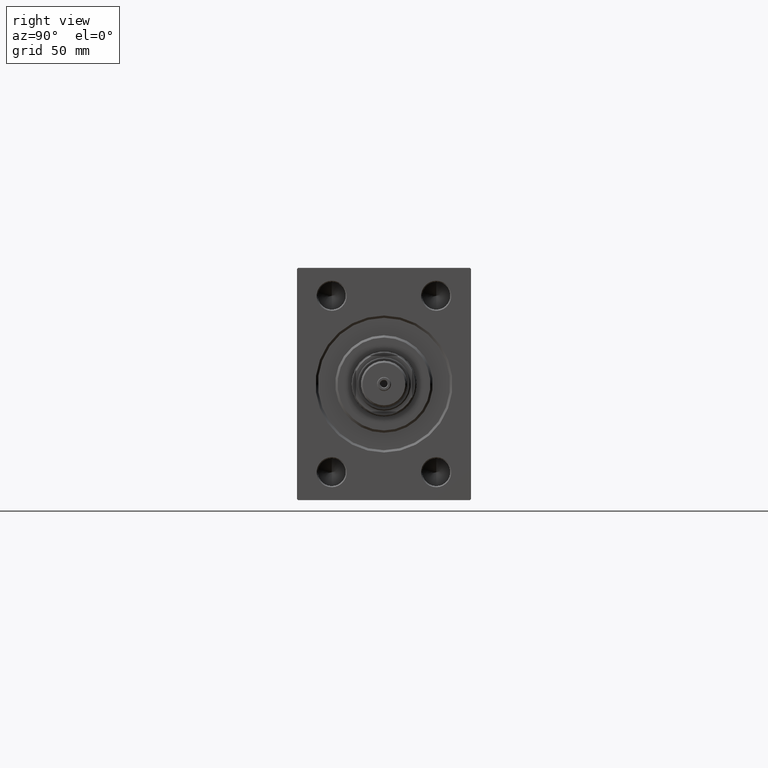
[diagram: clean part render]
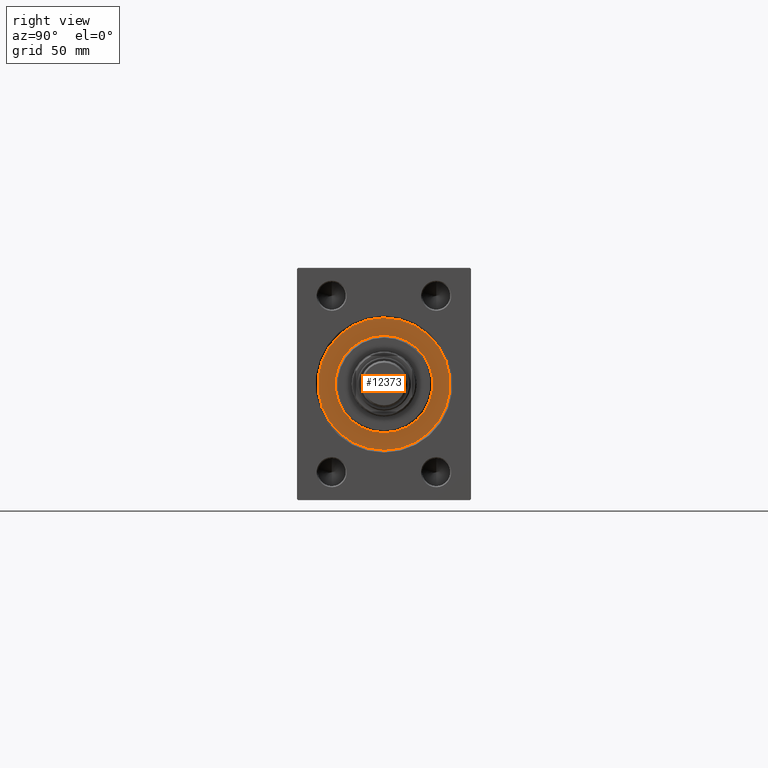
[diagram: same view with one face highlighted and labeled with its STEP entity id]
A machine part, right view. The second image highlights one B-rep face of the part: STEP entity #12373.
In plain terms, the highlighted planar face has unit normal (-1, 0, 0).
Its self-contained STEP definition (entity closure, byte-faithful):
#1691 = CARTESIAN_POINT ( 'NONE',  ( 0.000000000000000000, 0.000000000000000000, -28.50000000000000000 ) ) ;
#1808 = CARTESIAN_POINT ( 'NONE',  ( 0.000000000000000000, 0.000000000000000000, 21.00000000000000000 ) ) ;
#2731 = AXIS2_PLACEMENT_3D ( 'NONE', #39729, #7755, #25288 ) ;
#4599 = AXIS2_PLACEMENT_3D ( 'NONE', #37966, #31455, #9369 ) ;
#4611 = DIRECTION ( 'NONE',  ( 0.000000000000000000, 0.000000000000000000, -1.000000000000000000 ) ) ;
#5662 = DIRECTION ( 'NONE',  ( 0.000000000000000000, 0.000000000000000000, 1.000000000000000000 ) ) ;
#6031 = DIRECTION ( 'NONE',  ( 0.000000000000000000, 0.000000000000000000, -1.000000000000000000 ) ) ;
#7755 = DIRECTION ( 'NONE',  ( -1.000000000000000000, 0.000000000000000000, 0.000000000000000000 ) ) ;
#8790 = EDGE_CURVE ( 'NONE', #23626, #34229, #40664, .T. ) ;
#9369 = DIRECTION ( 'NONE',  ( 0.000000000000000000, 0.000000000000000000, 1.000000000000000000 ) ) ;
#10417 = AXIS2_PLACEMENT_3D ( 'NONE', #17304, #46182, #6031 ) ;
#10983 = EDGE_CURVE ( 'NONE', #45317, #32150, #26896, .T. ) ;
#12373 = ADVANCED_FACE ( 'NONE', ( #38582, #30876 ), #45566, .F. ) ;
#12631 = CARTESIAN_POINT ( 'NONE',  ( 0.000000000000000000, 0.000000000000000000, 0.000000000000000000 ) ) ;
#17304 = CARTESIAN_POINT ( 'NONE',  ( 0.000000000000000000, 0.000000000000000000, 0.000000000000000000 ) ) ;
#20348 = CIRCLE ( 'NONE', #2731, 28.50000000000000000 ) ;
#22945 = ORIENTED_EDGE ( 'NONE', *, *, #10983, .F. ) ;
#23626 = VERTEX_POINT ( 'NONE', #33918 ) ;
#24976 = CIRCLE ( 'NONE', #10417, 21.00000000000000000 ) ;
#25288 = DIRECTION ( 'NONE',  ( 0.000000000000000000, 0.000000000000000000, 1.000000000000000000 ) ) ;
#26318 = EDGE_CURVE ( 'NONE', #34229, #23626, #20348, .T. ) ;
#26896 = CIRCLE ( 'NONE', #34561, 21.00000000000000000 ) ;
#26934 = EDGE_CURVE ( 'NONE', #32150, #45317, #24976, .T. ) ;
#29506 = CARTESIAN_POINT ( 'NONE',  ( 0.000000000000000000, 2.571758278209441661E-15, -21.00000000000000000 ) ) ;
#30637 = DIRECTION ( 'NONE',  ( -1.000000000000000000, 0.000000000000000000, 0.000000000000000000 ) ) ;
#30769 = DIRECTION ( 'NONE',  ( 1.000000000000000000, -0.000000000000000000, 0.000000000000000000 ) ) ;
#30876 = FACE_OUTER_BOUND ( 'NONE', #31802, .T. ) ;
#31455 = DIRECTION ( 'NONE',  ( -1.000000000000000000, 0.000000000000000000, 0.000000000000000000 ) ) ;
#31802 = EDGE_LOOP ( 'NONE', ( #35624, #35798 ) ) ;
#32150 = VERTEX_POINT ( 'NONE', #29506 ) ;
#33918 = CARTESIAN_POINT ( 'NONE',  ( 0.000000000000000000, 3.490243377569956456E-15, 28.50000000000000000 ) ) ;
#34229 = VERTEX_POINT ( 'NONE', #1691 ) ;
#34561 = AXIS2_PLACEMENT_3D ( 'NONE', #37540, #30769, #4611 ) ;
#35624 = ORIENTED_EDGE ( 'NONE', *, *, #26318, .F. ) ;
#35798 = ORIENTED_EDGE ( 'NONE', *, *, #8790, .F. ) ;
#37022 = EDGE_LOOP ( 'NONE', ( #22945, #46913 ) ) ;
#37540 = CARTESIAN_POINT ( 'NONE',  ( 0.000000000000000000, 0.000000000000000000, 0.000000000000000000 ) ) ;
#37966 = CARTESIAN_POINT ( 'NONE',  ( 0.000000000000000000, 0.000000000000000000, 0.000000000000000000 ) ) ;
#38582 = FACE_BOUND ( 'NONE', #37022, .T. ) ;
#39729 = CARTESIAN_POINT ( 'NONE',  ( 0.000000000000000000, 0.000000000000000000, 0.000000000000000000 ) ) ;
#40664 = CIRCLE ( 'NONE', #4599, 28.50000000000000000 ) ;
#43098 = AXIS2_PLACEMENT_3D ( 'NONE', #12631, #30637, #5662 ) ;
#45317 = VERTEX_POINT ( 'NONE', #1808 ) ;
#45566 = PLANE ( 'NONE',  #43098 ) ;
#46182 = DIRECTION ( 'NONE',  ( 1.000000000000000000, -0.000000000000000000, 0.000000000000000000 ) ) ;
#46913 = ORIENTED_EDGE ( 'NONE', *, *, #26934, .F. ) ;